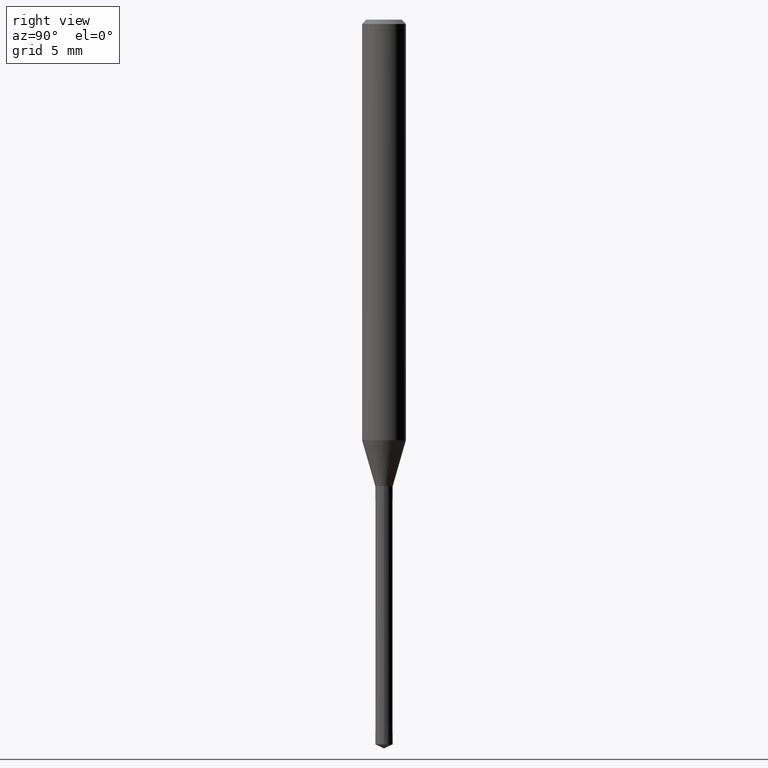
[diagram: clean part render]
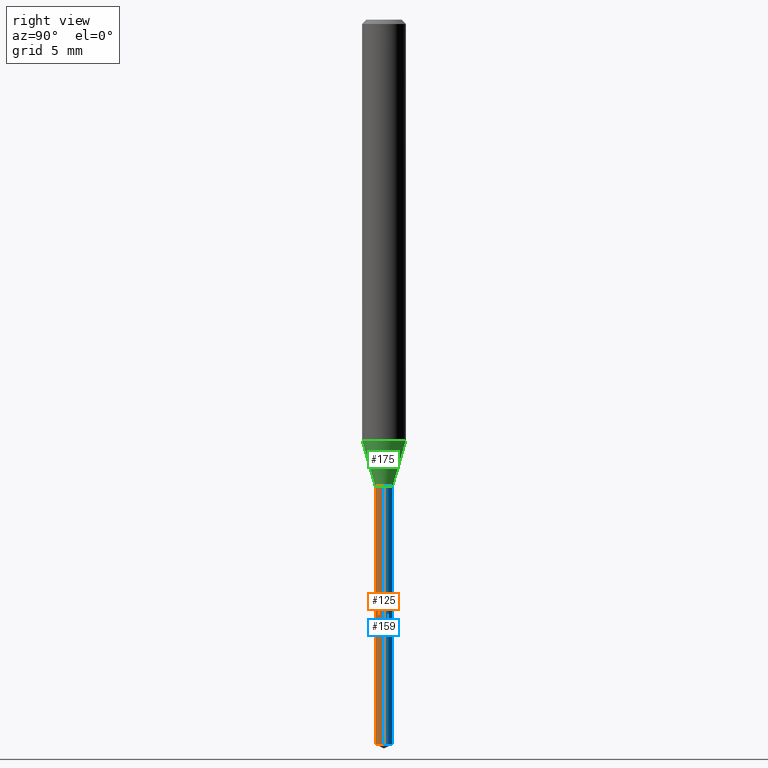
[diagram: same view with three faces highlighted in distinct colors, each labeled with its STEP entity id]
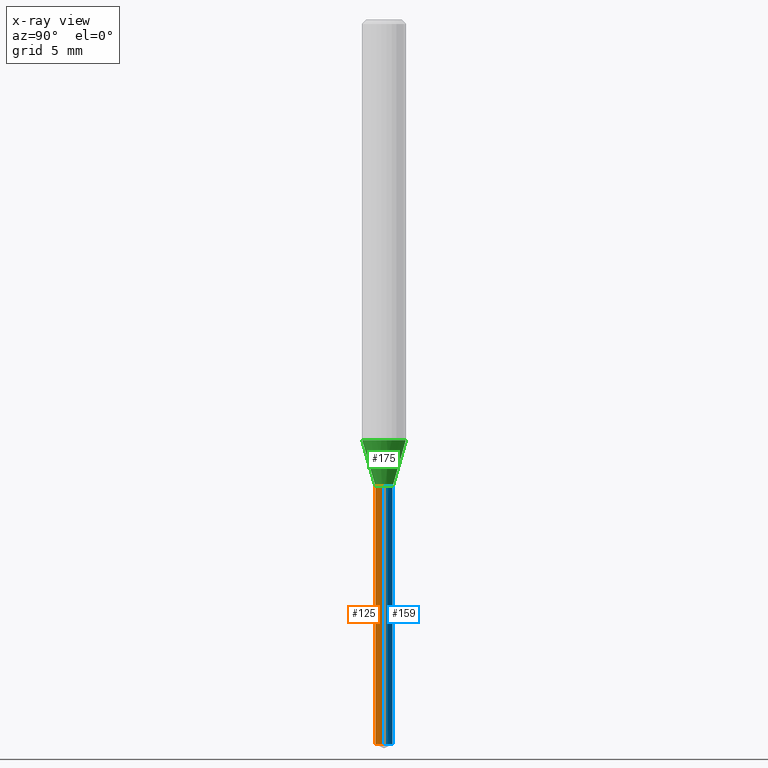
[diagram: x-ray of the same camera — body ghosted, the three highlighted faces saturated]
A machine part, right view with three faces highlighted in distinct colors.
The next image is the same camera in x-ray (body ghosted, the three faces saturated) — at least one of them is partly hidden behind the body in this view.
Their STEP definitions:

[orange] entity #125 — the highlighted conical surface has half-angle 0.003 deg.
#91=EDGE_CURVE('',#169,#203,#226,.T.);
#119=VERTEX_POINT('',#259);
#121=EDGE_CURVE('',#169,#163,#261,.T.);
#125=ADVANCED_FACE('',(#265),#266,.T.);
#139=EDGE_CURVE('',#119,#203,#281,.T.);
#155=EDGE_CURVE('',#163,#119,#299,.T.);
#163=VERTEX_POINT('',#308);
#169=VERTEX_POINT('',#315);
#203=VERTEX_POINT('',#352);
#226=CIRCLE('',#369,0.6);
#259=CARTESIAN_POINT('',(-0.601,0.0,-32.0));
#261=LINE('',#412,#413);
#265=FACE_OUTER_BOUND('',#419,.T.);
#266=CONICAL_SURFACE('',#420,0.6005,5.64327225037074E-005);
#281=LINE('',#439,#440);
#299=CIRCLE('',#463,0.601);
#308=CARTESIAN_POINT('',(0.601,7.35988418647249E-017,-32.0));
#315=CARTESIAN_POINT('',(0.6,7.34763812293427E-017,-49.72021541));
#352=CARTESIAN_POINT('',(-0.6,0.0,-49.72021541));
#369=AXIS2_PLACEMENT_3D('',#535,#536,#537);
#412=CARTESIAN_POINT('',(0.6005,7.35376115470338E-017,-40.860107705));
#413=VECTOR('',#583,1.0);
#419=EDGE_LOOP('',(#586,#587,#588,#589));
#420=AXIS2_PLACEMENT_3D('',#590,#591,#592);
#439=CARTESIAN_POINT('',(-0.6005,-7.35376115470338E-017,-40.860107705));
#440=VECTOR('',#605,1.0);
#463=AXIS2_PLACEMENT_3D('',#626,#627,#628);
#535=CARTESIAN_POINT('',(0.0,0.0,-49.72021541));
#536=DIRECTION('',(0.0,0.0,-1.0));
#537=DIRECTION('',(-1.0,0.0,0.0));
#583=DIRECTION('',(5.64327224737543E-005,6.91078705048544E-021,0.999999998407674));
#586=ORIENTED_EDGE('',*,*,#139,.T.);
#587=ORIENTED_EDGE('',*,*,#91,.F.);
#588=ORIENTED_EDGE('',*,*,#121,.T.);
#589=ORIENTED_EDGE('',*,*,#155,.T.);
#590=CARTESIAN_POINT('',(0.0,0.0,-40.860107705));
#591=DIRECTION('',(-0.0,-0.0,1.0));
#592=DIRECTION('',(-1.0,0.0,0.0));
#605=DIRECTION('',(5.64327224737543E-005,6.91078705048544E-021,-0.999999998407674));
#626=CARTESIAN_POINT('',(0.0,0.0,-32.0));
#627=DIRECTION('',(0.0,0.0,-1.0));
#628=DIRECTION('',(-1.0,0.0,0.0));

[blue] entity #159 — the highlighted conical surface has half-angle 0.003 deg.
#119=VERTEX_POINT('',#259);
#121=EDGE_CURVE('',#169,#163,#261,.T.);
#129=EDGE_CURVE('',#119,#163,#270,.T.);
#139=EDGE_CURVE('',#119,#203,#281,.T.);
#159=ADVANCED_FACE('',(#303),#304,.T.);
#161=EDGE_CURVE('',#203,#169,#306,.T.);
#163=VERTEX_POINT('',#308);
#169=VERTEX_POINT('',#315);
#203=VERTEX_POINT('',#352);
#259=CARTESIAN_POINT('',(-0.601,0.0,-32.0));
#261=LINE('',#412,#413);
#270=CIRCLE('',#425,0.601);
#281=LINE('',#439,#440);
#303=FACE_OUTER_BOUND('',#467,.T.);
#304=CONICAL_SURFACE('',#468,0.6005,5.64327225037074E-005);
#306=CIRCLE('',#471,0.6);
#308=CARTESIAN_POINT('',(0.601,7.35988418647249E-017,-32.0));
#315=CARTESIAN_POINT('',(0.6,7.34763812293427E-017,-49.72021541));
#352=CARTESIAN_POINT('',(-0.6,0.0,-49.72021541));
#412=CARTESIAN_POINT('',(0.6005,7.35376115470338E-017,-40.860107705));
#413=VECTOR('',#583,1.0);
#425=AXIS2_PLACEMENT_3D('',#593,#594,#595);
#439=CARTESIAN_POINT('',(-0.6005,-7.35376115470338E-017,-40.860107705));
#440=VECTOR('',#605,1.0);
#467=EDGE_LOOP('',(#630,#631,#632,#633));
#468=AXIS2_PLACEMENT_3D('',#634,#635,#636);
#471=AXIS2_PLACEMENT_3D('',#637,#638,#639);
#583=DIRECTION('',(5.64327224737543E-005,6.91078705048544E-021,0.999999998407674));
#593=CARTESIAN_POINT('',(0.0,0.0,-32.0));
#594=DIRECTION('',(0.0,0.0,-1.0));
#595=DIRECTION('',(-1.0,0.0,0.0));
#605=DIRECTION('',(5.64327224737543E-005,6.91078705048544E-021,-0.999999998407674));
#630=ORIENTED_EDGE('',*,*,#139,.F.);
#631=ORIENTED_EDGE('',*,*,#129,.T.);
#632=ORIENTED_EDGE('',*,*,#121,.F.);
#633=ORIENTED_EDGE('',*,*,#161,.F.);
#634=CARTESIAN_POINT('',(0.0,0.0,-40.860107705));
#635=DIRECTION('',(-0.0,-0.0,1.0));
#636=DIRECTION('',(-1.0,0.0,0.0));
#637=CARTESIAN_POINT('',(0.0,0.0,-49.72021541));
#638=DIRECTION('',(0.0,0.0,-1.0));
#639=DIRECTION('',(-1.0,0.0,0.0));

[green] entity #175 — the highlighted conical surface has half-angle 16.003 deg.
#97=VERTEX_POINT('',#233);
#99=VERTEX_POINT('',#235);
#107=EDGE_CURVE('',#135,#127,#245,.T.);
#127=VERTEX_POINT('',#268);
#135=VERTEX_POINT('',#277);
#143=EDGE_CURVE('',#99,#135,#285,.T.);
#175=ADVANCED_FACE('',(#321),#322,.T.);
#179=EDGE_CURVE('',#127,#97,#326,.T.);
#199=EDGE_CURVE('',#99,#97,#348,.T.);
#233=CARTESIAN_POINT('',(1.83690953073357E-016,-1.5,-28.861));
#235=CARTESIAN_POINT('',(0.0,1.5,-28.861));
#245=CIRCLE('',#389,0.6);
#268=CARTESIAN_POINT('',(7.34763812293426E-017,-0.6,-31.9991339745962));
#277=CARTESIAN_POINT('',(0.0,0.6,-31.9991339745962));
#285=LINE('',#447,#448);
#321=FACE_OUTER_BOUND('',#489,.T.);
#322=CONICAL_SURFACE('',#490,1.05,0.279298190793163);
#326=LINE('',#494,#495);
#348=CIRCLE('',#526,1.5);
#389=AXIS2_PLACEMENT_3D('',#562,#563,#564);
#447=CARTESIAN_POINT('',(-1.2858366715135E-016,1.05,-30.4300669872981));
#448=VECTOR('',#607,1.0);
#489=EDGE_LOOP('',(#657,#658,#659,#660));
#490=AXIS2_PLACEMENT_3D('',#661,#662,#663);
#494=CARTESIAN_POINT('',(1.2858366715135E-016,-1.05,-30.4300669872981));
#495=VECTOR('',#665,1.0);
#526=AXIS2_PLACEMENT_3D('',#694,#695,#696);
#562=CARTESIAN_POINT('',(0.0,0.0,-31.9991339745962));
#563=DIRECTION('',(0.0,0.0,-1.0));
#564=DIRECTION('',(0.0,1.0,0.0));
#607=DIRECTION('',(3.3760083037116E-017,-0.275681103007022,-0.961249150556104));
#657=ORIENTED_EDGE('',*,*,#143,.F.);
#658=ORIENTED_EDGE('',*,*,#199,.T.);
#659=ORIENTED_EDGE('',*,*,#179,.F.);
#660=ORIENTED_EDGE('',*,*,#107,.F.);
#661=CARTESIAN_POINT('',(0.0,0.0,-30.4300669872981));
#662=DIRECTION('',(-0.0,-0.0,1.0));
#663=DIRECTION('',(0.0,1.0,0.0));
#665=DIRECTION('',(3.3760083037116E-017,-0.275681103007022,0.961249150556104));
#694=CARTESIAN_POINT('',(0.0,0.0,-28.861));
#695=DIRECTION('',(0.0,0.0,-1.0));
#696=DIRECTION('',(0.0,1.0,0.0));